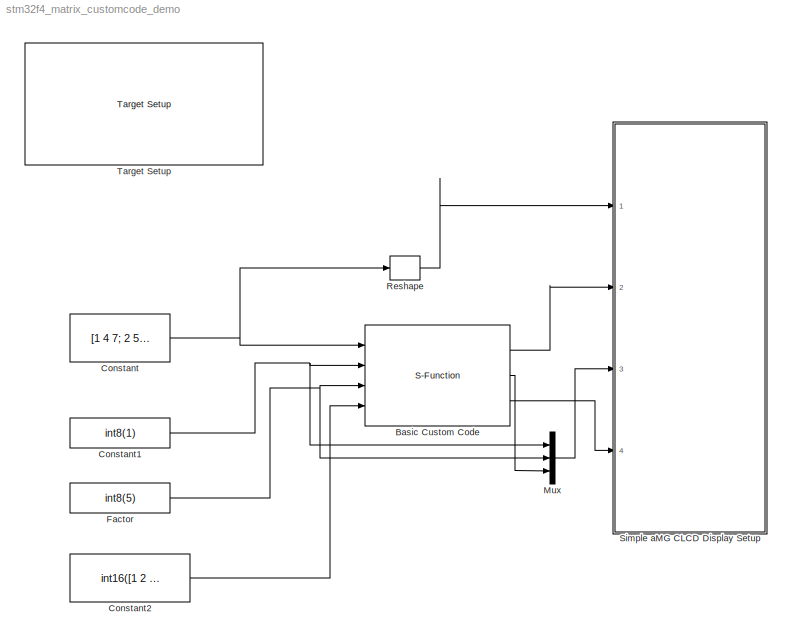
MODEL stm32f4_matrix_customcode_demo
KIND model
CONFIG PreLoadFcn = waijung.modelPreload; % Required for working with Waijung Blockset. Do not remove.
BLOCK [S-Function] Basic Custom Code
  EnableBusSupport = off
  FunctionName = waijung_basic_customcode
  MaskCallbackString = waijung_basic_customcode_callback('inputporttype');|waijung_basic_customcode_callback('cinputportlabel');||||waijung_basic_customcode_callback('outputporttype');|waijung_basic_customcode_callback('coutputportlabel');||||||waijung_basic_customcode_callback('incfiles');||||||waijung_basic_customcode_callback('sampletime');||waijung_basic_customcode_callback('blockid');||||
  MaskDescription = This block implements a basic custom code block.\n\nAllowed input/output datatype:\ndynamic,double,single,int8,uint8,int16,uint16,int32,uint32,boolean. Leave this field empty if no input or output needed.\n\n\"Path for include files\" defines the include path. All *.h files in these path(s) will be used in the build process.\n\n\"Path for source files\" defines path to look for each source file(s)...<+672ch>
  MaskDisplay = text(0.5, 0.5, 'Ts (sec): 0.01','ver','middle','hor','center');port_label('input', 1,'In1');port_label('input', 2,'In2');port_label('input', 3,'In3');port_label('input', 4,'In4');port_label('output', 1,'Rearrange');port_label('output', 2,'Add');port_label('output', 3,'Substract')
  MaskEnableString = on,on,on,on,on,on,on,on,on,on,on,on,on,on,on,on,on,on,on,on,on,on,on,off,off
  MaskHelp = web(fullfile(waijungdocroot,'waijung_basic_customcode.htm'), '-browser')
  MaskIconFrame = on
  MaskIconOpaque = on
  MaskIconRotate = none
  MaskIconUnits = normalized
  MaskInitialization = waijung_basic_customcode_callback('init');
  MaskPortRotate = default
  MaskPromptString = Input port definition (data type) separted by comma e.g. double, single, double, uint8|Custom input port labels (Ex. In1, In2, In3)|Custom input port type string|Input port count|Input port data type ID|Output port definition  (data type) separted by comma e.g. double, single, double, uint8|Custom output port labels (Ex. Out1, Out2, Out3)|Custom output port type string|Output port count|Output por...<+589ch>
  MaskSelfModifiable = on
  MaskStyleString = edit,edit,edit,edit,edit,edit,edit,edit,edit,edit,edit,edit,edit,edit,edit,edit,edit,edit,edit,edit,edit,checkbox,edit,edit,edit
  MaskTabNameString = ,,,,,,,,,,,,,,,,,,,,,,,,
  MaskToolTipString = on,on,on,on,on,on,on,on,on,on,on,on,on,on,on,on,on,on,on,on,on,on,on,on,on
  MaskTunableValueString = off,off,off,off,off,off,off,off,off,off,off,off,off,off,off,off,off,off,off,off,off,off,off,off,off
  MaskType = waijung_basic_customcode
  MaskValueString = double,int8,int8,int16|In1,In2,In3,In4|[\"In1\",\"In2\",\"In3\",\"In4\"]|4|[0  2  2  4]|uint8:9x1,int8,double:9x1|Rearrange,Add,Substract|[\"Rearrange\",\"Add\",\"Substract\"]|3|[3  2  0]|{fullfile(pwd,'matrix_customcode')}|{fullfile(pwd,'matrix_customcode')}|{'stm32f4_matrix_customcode.h'}|{'stm32f4_matrix_customcode.c'}||enable_custommatrix();|output_custommatrix(in1,in2,in3, in4 ,out1,out2,out3...<+171ch>
  MaskVarAliasString = ,,,,,,,,,,,,,,,,,,,,,,,,
  MaskVariables = inputporttype=&1;cinputportlabel=&2;cinputportlabelstr=&3;inputportcount=@4;inputporttypeid=@5;outputporttype=&6;coutputportlabel=&7;coutputportlabelstr=&8;outputportcount=@9;outputporttypeid=@10;incpath=@11;srcpath=@12;incfiles=@13;srcfiles=@14;initialfuncallstr=&15;enablefuncallstr=&16;outputfuncallstr=&17;disablefuncallstr=&18;sampletime=@19;sampletimestr=&20;blockid=&21;enablecustomportlabel=@...<+66ch>
  MaskVisibilityString = on,on,off,off,off,on,on,off,off,off,on,on,on,on,on,on,on,on,on,off,off,off,off,off,off
  Parameters = inputportcount,inputporttypeid,outputportcount,outputporttypeid,sampletime,blockid,cinputportlabelstr,coutputportlabelstr,incfilestrarray,outputporttype,inputporttype,initialfuncallstr,enablefuncallstr,outputfuncallstr,disablefuncallstr,inputportdiminfo,outputportdiminfo
  Ports = [4, 3]
BLOCK [Constant] Constant
  OutDataType = fixdt(1, 16)
  OutScaling = 2^0
  Value = [1 4 7; 2 5 8;3 6 9]
BLOCK [Constant] Constant1
  OutDataType = fixdt(1, 16)
  OutScaling = 2^0
  Value = int8(1)
BLOCK [Constant] Constant2
  OutDataType = fixdt(1, 16)
  OutScaling = 2^0
  Value = int16([1 2 3 4 5 6 7 8 9])
BLOCK [Constant] Factor
  OutDataType = fixdt(1, 16)
  OutScaling = 2^0
  Value = int8(5)
BLOCK [Mux] Mux
  DisplayOption = bar
  Inputs = 3
  Ports = [3, 1]
BLOCK [Reshape] Reshape
  Ports = [1, 1]
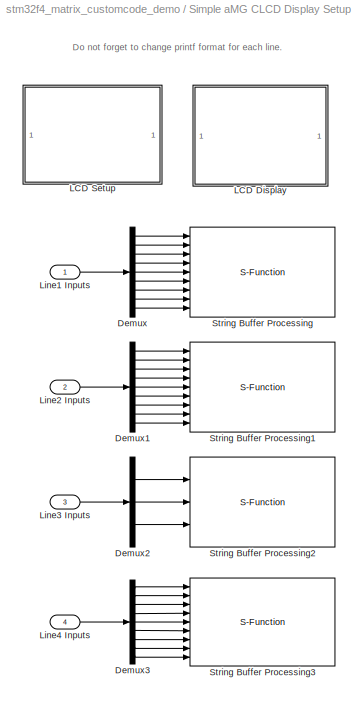
BLOCK [SubSystem] Simple aMG CLCD Display Setup
  CopyFcn = set_param(gcbh, 'LinkStatus', 'none')
  FunctionWithSeparateData = off
  MaskHideContents = off
  MinAlgLoopOccurrences = off
  Opaque = off
  Ports = [4]
  PropExecContextOutsideSubsystem = off
  RTWSystemCode = Auto
  RequestExecContextInheritance = off
BLOCK [Demux] Simple aMG CLCD Display Setup/Demux
  DisplayOption = bar
  Outputs = 9
  Ports = [1, 9]
BLOCK [Demux] Simple aMG CLCD Display Setup/Demux1
  DisplayOption = bar
  Outputs = 9
  Ports = [1, 9]
BLOCK [Demux] Simple aMG CLCD Display Setup/Demux2
  DisplayOption = bar
  Outputs = 3
  Ports = [1, 3]
BLOCK [Demux] Simple aMG CLCD Display Setup/Demux3
  DisplayOption = bar
  Outputs = 9
  Ports = [1, 9]
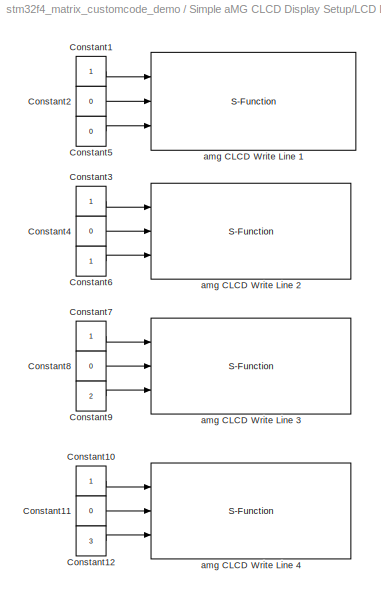
BLOCK [SubSystem] Simple aMG CLCD Display Setup/LCD Display
  FunctionWithSeparateData = off
  MaskHideContents = off
  MinAlgLoopOccurrences = off
  Opaque = off
  Ports = []
  PropExecContextOutsideSubsystem = off
  RTWSystemCode = Auto
  RequestExecContextInheritance = off
BLOCK [Constant] Simple aMG CLCD Display Setup/LCD Display/Constant1
  OutDataType = fixdt(1, 16)
  OutDataTypeMode = uint8
  OutDataTypeStr = uint8
  OutScaling = 2^0
BLOCK [Constant] Simple aMG CLCD Display Setup/LCD Display/Constant10
  OutDataType = fixdt(1, 16)
  OutDataTypeMode = uint8
  OutDataTypeStr = uint8
  OutScaling = 2^0
BLOCK [Constant] Simple aMG CLCD Display Setup/LCD Display/Constant11
  OutDataType = fixdt(1, 16)
  OutDataTypeMode = uint8
  OutDataTypeStr = uint8
  OutScaling = 2^0
  Value = 0
BLOCK [Constant] Simple aMG CLCD Display Setup/LCD Display/Constant12
  OutDataType = fixdt(1, 16)
  OutDataTypeMode = uint8
  OutDataTypeStr = uint8
  OutScaling = 2^0
  Value = 3
BLOCK [Constant] Simple aMG CLCD Display Setup/LCD Display/Constant2
  OutDataType = fixdt(1, 16)
  OutDataTypeMode = uint8
  OutDataTypeStr = uint8
  OutScaling = 2^0
  Value = 0
BLOCK [Constant] Simple aMG CLCD Display Setup/LCD Display/Constant3
  OutDataType = fixdt(1, 16)
  OutDataTypeMode = uint8
  OutDataTypeStr = uint8
  OutScaling = 2^0
BLOCK [Constant] Simple aMG CLCD Display Setup/LCD Display/Constant4
  OutDataType = fixdt(1, 16)
  OutDataTypeMode = uint8
  OutDataTypeStr = uint8
  OutScaling = 2^0
  Value = 0
BLOCK [Constant] Simple aMG CLCD Display Setup/LCD Display/Constant5
  OutDataType = fixdt(1, 16)
  OutDataTypeMode = uint8
  OutDataTypeStr = uint8
  OutScaling = 2^0
  Value = 0
BLOCK [Constant] Simple aMG CLCD Display Setup/LCD Display/Constant6
  OutDataType = fixdt(1, 16)
  OutDataTypeMode = uint8
  OutDataTypeStr = uint8
  OutScaling = 2^0
BLOCK [Constant] Simple aMG CLCD Display Setup/LCD Display/Constant7
  OutDataType = fixdt(1, 16)
  OutDataTypeMode = uint8
  OutDataTypeStr = uint8
  OutScaling = 2^0
BLOCK [Constant] Simple aMG CLCD Display Setup/LCD Display/Constant8
  OutDataType = fixdt(1, 16)
  OutDataTypeMode = uint8
  OutDataTypeStr = uint8
  OutScaling = 2^0
  Value = 0
BLOCK [Constant] Simple aMG CLCD Display Setup/LCD Display/Constant9
  OutDataType = fixdt(1, 16)
  OutDataTypeMode = uint8
  OutDataTypeStr = uint8
  OutScaling = 2^0
  Value = 2
BLOCK [S-Function] Simple aMG CLCD Display Setup/LCD Display/amg CLCD Write Line 1
  EnableBusSupport = off
  FunctionName = amg_clcd
  MaskCallbackString = amg_clcd_callback('configuration');||||||||||||||||amg_clcd_callback('usestringbuffer');||amg_clcd_callback('varname');|||amg_clcd_callback('confstr');|amg_clcd_callback('sampletime');|amg_clcd_callback('sampletimestr');|amg_clcd_callback('blockid');  <repeated x5 — deduplicated; at blocks: amg CLCD Write Line 1, amg CLCD Write Line 2, amg CLCD Write Line 3, amg CLCD Write Line 4, amg CLCD Setup>
  MaskDescription = Note for cmd:\n1 - Clear LCD Line before write.\n0 or otherwise - Write into LCD Line with existing data.\n
  MaskDisplay = text(0.5, 0.5, 'Module: CLCD1 (Write)\\nBuffer: Line1\\nTs (sec): 0.05','ver','middle','hor','center');port_label('input', 1,'cmd');port_label('input', 2,'xpos');port_label('input', 3,'ypos');
  MaskEnableString = on,on,on,off,off,on,on,on,on,on,on,on,on,on,on,on,on,on,off,off,off,on,on,on,on
  MaskHelp = web(fullfile(waijungdocroot,'amg_clcd_write.htm'), '-browser')
  MaskIconFrame = on
  MaskIconOpaque = on
  MaskIconRotate = none
  MaskIconUnits = normalized
  MaskInitialization = amg_clcd_callback('init');
  MaskPortRotate = default
  MaskPromptString = Configuration:|Module:|LCD model:|Interface:|Number of lines:|Number of columns:|GPIO Pull-Up/Down:|GPIO control port:|GPIO control pin, RS:|GPIO control pin, EN:|GPIO control pin, RW:|GPIO data D[7:4] port|GPIO data pin, D4:|GPIO data pin, D5:|GPIO data pin, D6:|GPIO data pin, D7:|Use string buffer|String buffer|Variable name|Input type array|Output type array|Configuration string|Sample time (se...<+47ch>  <repeated x4 — deduplicated; at blocks: amg CLCD Write Line 1, amg CLCD Write Line 2, amg CLCD Write Line 3, amg CLCD Write Line 4>
  MaskSelfModifiable = on
  MaskStyleString = popup(Setup|Transaction),popup(1|2|3|4),popup(amg CLCD Std),popup(4-bits),edit,edit,popup(Push-pull|Open-drain),popup(A|B|C|D|E|F|G|H|I),popup(0|1|2|3|4|5|6|7|8|9|10|11|12|13|14|15),popup(0|1|2|3|4|5|6|7|8|9|10|11|12|13|14|15),popup(0|1|2|3|4|5|6|7|8|9|10|11|12|13|14|15),popup(A|B|C|D|E|F|G|H|I),popup(0|1|2|3|4|5|6|7|8|9|10|11|12|13|14|15),popup(0|1|2|3|4|5|6|7|8|9|10|11|12|13|14|15),popup(0|1|2|3...<+151ch>  <repeated x5 — deduplicated; at blocks: amg CLCD Write Line 1, amg CLCD Write Line 2, amg CLCD Write Line 3, amg CLCD Write Line 4, amg CLCD Setup>
  MaskTabNameString = ,,,,,,,,,,,,,,,,,,,,,,,,
  MaskToolTipString = on,on,on,on,on,on,on,on,on,on,on,on,on,on,on,on,on,on,on,on,on,on,on,on,on
  MaskTunableValueString = off,off,off,off,off,off,off,off,off,off,off,off,off,off,off,off,off,off,off,off,off,off,off,off,off
  MaskType = amg_clcd
  MaskValueString = Transaction|1|amg CLCD Std|4-bits|4|20|Push-pull|E|15|11|13|A|7|5|3|1|on|Line1|SimpleaMGCLCDDisplaySetupLCDSetupVolatileDataStorage_Line1|[3 -1 -1 -1]|[0]|[\"4\",\"4\",\"20\",\"PP\",\"E\",\"15\",\"11\",\"13\",\"\",\"A\",\"\",\"\",\"\",\"\",\"7\",\"5\",\"3\",\"1\",\"1\",\"SimpleaMGCLCDDisplaySetupLCDSetupVolatileDataStorage_Line1\",\"1\",\"0\",\"0\",\"0\",\"1\",\"0\",\"0\",\"0\",\"0\",\"stm32f4\"]|...<+62ch>
  MaskVarAliasString = ,,,,,,,,,,,,,,,,,,,,,,,,
  MaskVariables = configuration=&1;module=&2;model=&3;interface=&4;linecount=@5;columncount=@6;gpiotype=&7;controlport=&8;control_rs=&9;control_en=&10;control_rw=&11;dataport=&12;data0=&13;data1=&14;data2=&15;data3=&16;usestringbuffer=@17;stringbuffer=&18;varname=&19;inputtypearray=@20;outputtypearray=@21;confstr=&22;sampletime=@23;sampletimestr=&24;blockid=&25;  <repeated x4 — deduplicated; at blocks: amg CLCD Write Line 1, amg CLCD Write Line 2, amg CLCD Write Line 3, amg CLCD Write Line 4>
  MaskVisibilityString = off,on,off,off,off,off,off,off,off,off,off,off,off,off,off,off,on,on,off,off,off,off,on,off,off
  Parameters = module,configuration,inputtypearray,outputtypearray,confstr,sampletime,sampletimestr,blockid
  Ports = [3]
BLOCK [S-Function] Simple aMG CLCD Display Setup/LCD Display/amg CLCD Write Line 2
  EnableBusSupport = off
  FunctionName = amg_clcd
  MaskDescription = Note for cmd:\n1 - Clear LCD Line before write.\n0 or otherwise - Write into LCD Line with existing data.\n
  MaskDisplay = text(0.5, 0.5, 'Module: CLCD1 (Write)\\nBuffer: Line2\\nTs (sec): 0.05','ver','middle','hor','center');port_label('input', 1,'cmd');port_label('input', 2,'xpos');port_label('input', 3,'ypos');
  MaskEnableString = on,on,on,off,off,on,on,on,on,on,on,on,on,on,on,on,on,on,off,off,off,on,on,on,on
  MaskHelp = web(fullfile(waijungdocroot,'amg_clcd_write.htm'), '-browser')
  MaskIconFrame = on
  MaskIconOpaque = on
  MaskIconRotate = none
  MaskIconUnits = normalized
  MaskInitialization = amg_clcd_callback('init');
  MaskPortRotate = default
  MaskSelfModifiable = on
  MaskTabNameString = ,,,,,,,,,,,,,,,,,,,,,,,,
  MaskToolTipString = on,on,on,on,on,on,on,on,on,on,on,on,on,on,on,on,on,on,on,on,on,on,on,on,on
  MaskTunableValueString = off,off,off,off,off,off,off,off,off,off,off,off,off,off,off,off,off,off,off,off,off,off,off,off,off
  MaskType = amg_clcd
  MaskValueString = Transaction|1|amg CLCD Std|4-bits|4|20|Push-pull|E|15|11|13|A|7|5|3|1|on|Line2|SimpleaMGCLCDDisplaySetupLCDSetupVolatileDataStorage1_Line2|[3 -1 -1 -1]|[0]|[\"4\",\"4\",\"20\",\"PP\",\"E\",\"15\",\"11\",\"13\",\"\",\"A\",\"\",\"\",\"\",\"\",\"7\",\"5\",\"3\",\"1\",\"1\",\"SimpleaMGCLCDDisplaySetupLCDSetupVolatileDataStorage1_Line2\",\"1\",\"0\",\"0\",\"0\",\"1\",\"0\",\"0\",\"0\",\"0\",\"stm32f4\"...<+64ch>
  MaskVarAliasString = ,,,,,,,,,,,,,,,,,,,,,,,,
  MaskVisibilityString = off,on,off,off,off,off,off,off,off,off,off,off,off,off,off,off,on,on,off,off,off,off,on,off,off
  Parameters = module,configuration,inputtypearray,outputtypearray,confstr,sampletime,sampletimestr,blockid
  Ports = [3]
BLOCK [S-Function] Simple aMG CLCD Display Setup/LCD Display/amg CLCD Write Line 3
  EnableBusSupport = off
  FunctionName = amg_clcd
  MaskDescription = Note for cmd:\n1 - Clear LCD Line before write.\n0 or otherwise - Write into LCD Line with existing data.\n
  MaskDisplay = text(0.5, 0.5, 'Module: CLCD1 (Write)\\nBuffer: Line3\\nTs (sec): 0.05','ver','middle','hor','center');port_label('input', 1,'cmd');port_label('input', 2,'xpos');port_label('input', 3,'ypos');
  MaskEnableString = on,on,on,off,off,on,on,on,on,on,on,on,on,on,on,on,on,on,off,off,off,on,on,on,on
  MaskHelp = web(fullfile(waijungdocroot,'amg_clcd_write.htm'), '-browser')
  MaskIconFrame = on
  MaskIconOpaque = on
  MaskIconRotate = none
  MaskIconUnits = normalized
  MaskInitialization = amg_clcd_callback('init');
  MaskPortRotate = default
  MaskSelfModifiable = on
  MaskTabNameString = ,,,,,,,,,,,,,,,,,,,,,,,,
  MaskToolTipString = on,on,on,on,on,on,on,on,on,on,on,on,on,on,on,on,on,on,on,on,on,on,on,on,on
  MaskTunableValueString = off,off,off,off,off,off,off,off,off,off,off,off,off,off,off,off,off,off,off,off,off,off,off,off,off
  MaskType = amg_clcd
  MaskValueString = Transaction|1|amg CLCD Std|4-bits|4|20|Push-pull|E|15|11|13|A|7|5|3|1|on|Line3|SimpleaMGCLCDDisplaySetupLCDSetupVolatileDataStorage2_Line3|[3 -1 -1 -1]|[0]|[\"4\",\"4\",\"20\",\"PP\",\"E\",\"15\",\"11\",\"13\",\"\",\"A\",\"\",\"\",\"\",\"\",\"7\",\"5\",\"3\",\"1\",\"1\",\"SimpleaMGCLCDDisplaySetupLCDSetupVolatileDataStorage2_Line3\",\"1\",\"0\",\"0\",\"0\",\"1\",\"0\",\"0\",\"0\",\"0\",\"stm32f4\"...<+64ch>
  MaskVarAliasString = ,,,,,,,,,,,,,,,,,,,,,,,,
  MaskVisibilityString = off,on,off,off,off,off,off,off,off,off,off,off,off,off,off,off,on,on,off,off,off,off,on,off,off
  Parameters = module,configuration,inputtypearray,outputtypearray,confstr,sampletime,sampletimestr,blockid
  Ports = [3]
BLOCK [S-Function] Simple aMG CLCD Display Setup/LCD Display/amg CLCD Write Line 4
  EnableBusSupport = off
  FunctionName = amg_clcd
  MaskDescription = Note for cmd:\n1 - Clear LCD Line before write.\n0 or otherwise - Write into LCD Line with existing data.\n
  MaskDisplay = text(0.5, 0.5, 'Module: CLCD1 (Write)\\nBuffer: Line4\\nTs (sec): 0.05','ver','middle','hor','center');port_label('input', 1,'cmd');port_label('input', 2,'xpos');port_label('input', 3,'ypos');
  MaskEnableString = on,on,on,off,off,on,on,on,on,on,on,on,on,on,on,on,on,on,off,off,off,on,on,on,on
  MaskHelp = web(fullfile(waijungdocroot,'amg_clcd_write.htm'), '-browser')
  MaskIconFrame = on
  MaskIconOpaque = on
  MaskIconRotate = none
  MaskIconUnits = normalized
  MaskInitialization = amg_clcd_callback('init');
  MaskPortRotate = default
  MaskSelfModifiable = on
  MaskTabNameString = ,,,,,,,,,,,,,,,,,,,,,,,,
  MaskToolTipString = on,on,on,on,on,on,on,on,on,on,on,on,on,on,on,on,on,on,on,on,on,on,on,on,on
  MaskTunableValueString = off,off,off,off,off,off,off,off,off,off,off,off,off,off,off,off,off,off,off,off,off,off,off,off,off
  MaskType = amg_clcd
  MaskValueString = Transaction|1|amg CLCD Std|4-bits|4|20|Push-pull|E|15|11|13|A|7|5|3|1|on|Line4|SimpleaMGCLCDDisplaySetupLCDSetupVolatileDataStorage3_Line4|[3 -1 -1 -1]|[0]|[\"4\",\"4\",\"20\",\"PP\",\"E\",\"15\",\"11\",\"13\",\"\",\"A\",\"\",\"\",\"\",\"\",\"7\",\"5\",\"3\",\"1\",\"1\",\"SimpleaMGCLCDDisplaySetupLCDSetupVolatileDataStorage3_Line4\",\"1\",\"0\",\"0\",\"0\",\"1\",\"0\",\"0\",\"0\",\"0\",\"stm32f4\"...<+64ch>
  MaskVarAliasString = ,,,,,,,,,,,,,,,,,,,,,,,,
  MaskVisibilityString = off,on,off,off,off,off,off,off,off,off,off,off,off,off,off,off,on,on,off,off,off,off,on,off,off
  Parameters = module,configuration,inputtypearray,outputtypearray,confstr,sampletime,sampletimestr,blockid
  Ports = [3]
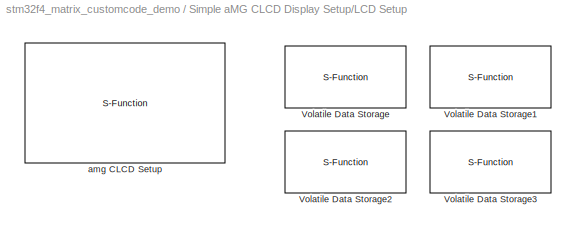
BLOCK [SubSystem] Simple aMG CLCD Display Setup/LCD Setup
  FunctionWithSeparateData = off
  MaskHideContents = off
  MinAlgLoopOccurrences = off
  Opaque = off
  Ports = []
  PropExecContextOutsideSubsystem = off
  RTWSystemCode = Auto
  RequestExecContextInheritance = off
BLOCK [S-Function] Simple aMG CLCD Display Setup/LCD Setup/Volatile Data Storage
  EnableBusSupport = off
  FunctionName = waijung_vdata_storage
  MaskCallbackString = waijung_vdata_storage_callback('storagetype');|waijung_vdata_storage_callback('storagename');|waijung_vdata_storage_callback('initval');|waijung_vdata_storage_callback('varname');||waijung_vdata_storage_callback('initvalstring');|waijung_vdata_storage_callback('webintegration');|waijung_vdata_storage_callback('weboutputformat');|||waijung_vdata_storage_callback('sampletime');|waijung_vdata_storage...<+71ch>  <repeated x4 — deduplicated; at blocks: Volatile Data Storage, Volatile Data Storage1, Volatile Data Storage2, Volatile Data Storage3>
  MaskDescription = This block implements a volatile Data Storage.\n\nWeb CGI varset/varget integratiopn:\nEnable - In webserver application, allow remote access via http.\nDisable - Variable is use in local only.  <repeated x4 — deduplicated; at blocks: Volatile Data Storage, Volatile Data Storage1, Volatile Data Storage2, Volatile Data Storage3>
  MaskDisplay = text(0.5, 0.5, 'Name: Line1\\nType: string','ver','middle','hor','center')
  MaskEnableString = on,on,on,off,on,on,on,on,off,on,on,off,off,on
  MaskHelp = web(fullfile(waijungdocroot,'Volatile_Data_Storage.htm'))
  MaskIconFrame = on
  MaskIconOpaque = on
  MaskIconRotate = none
  MaskIconUnits = normalized
  MaskInitialization = waijung_vdata_storage_callback('init');
  MaskPortRotate = default
  MaskPromptString = Storage Type|Storage Name (must be a valid variable name)|Initial value (Apply at Power on Reset only)|Variable name|Size (bytes)|Initial value (Apply at Power on Reset only)|Web CGI varget/varset integration|Web CGI varget output format|Web CGI varset callback|Last selected Storage Type|Sample time (sec)|Compiled sample time (sec) in string|BlockID|Type string  <repeated x4 — deduplicated; at blocks: Volatile Data Storage, Volatile Data Storage1, Volatile Data Storage2, Volatile Data Storage3>
  MaskSelfModifiable = on
  MaskStyleString = popup(double|single|uint32|int32|uint16|int16|uint8|int8|string),edit,edit,edit,edit,edit,popup(Disable|ReadOnly|Write/ Read|ReadOnly with KeyValuePair|Write/ Read with KeyValuePair),edit,edit,popup(double|single|uint32|int32|uint16|int16|uint8|int8|string),edit,edit,edit,edit  <repeated x4 — deduplicated; at blocks: Volatile Data Storage, Volatile Data Storage1, Volatile Data Storage2, Volatile Data Storage3>
  MaskTabNameString = ,,,,,,,,,,,,,
  MaskToolTipString = on,on,on,on,on,on,on,on,on,on,on,on,on,on
  MaskTunableValueString = off,off,off,off,off,off,off,off,off,off,off,off,off,off
  MaskType = waijung_vdata_storage
  MaskValueString = string|Line1|0|SimpleaMGCLCDDisplaySetupLCDSetupVolatileDataStorage_Line1|64|''|Disable|'%s'|(void*)0|string|-1|0.01|SimpleaMGCLCDDisplaySetupLCDSetupVolatileDataStorage|char
  MaskVarAliasString = ,,,,,,,,,,,,,
  MaskVariables = storagetype=&1;storagename=&2;initval=@3;varname=&4;buffersize=@5;initvalstring=@6;webintegration=&7;weboutputformat=&8;webcgicallback=&9;laststoragetype=&10;sampletime=@11;sampletimestr=&12;blockid=&13;storagetypestr=&14;  <repeated x4 — deduplicated; at blocks: Volatile Data Storage, Volatile Data Storage1, Volatile Data Storage2, Volatile Data Storage3>
  MaskVisibilityString = on,on,off,off,on,on,on,off,off,off,on,off,off,off
  Parameters = storagetype,storagename,initval,varname,buffersize,initvalstring,sampletime,sampletimestr,blockid,storagetypestr
  Ports = []
BLOCK [S-Function] Simple aMG CLCD Display Setup/LCD Setup/Volatile Data Storage1
  EnableBusSupport = off
  FunctionName = waijung_vdata_storage
  MaskDisplay = text(0.5, 0.5, 'Name: Line2\\nType: string','ver','middle','hor','center')
  MaskEnableString = on,on,on,off,on,on,on,on,off,on,on,off,off,on
  MaskHelp = web(fullfile(waijungdocroot,'Volatile_Data_Storage.htm'))
  MaskIconFrame = on
  MaskIconOpaque = on
  MaskIconRotate = none
  MaskIconUnits = normalized
  MaskInitialization = waijung_vdata_storage_callback('init');
  MaskPortRotate = default
  MaskSelfModifiable = on
  MaskTabNameString = ,,,,,,,,,,,,,
  MaskToolTipString = on,on,on,on,on,on,on,on,on,on,on,on,on,on
  MaskTunableValueString = off,off,off,off,off,off,off,off,off,off,off,off,off,off
  MaskType = waijung_vdata_storage
  MaskValueString = string|Line2|0|SimpleaMGCLCDDisplaySetupLCDSetupVolatileDataStorage1_Line2|64|''|Disable|'%s'|(void*)0|string|-1|0.01|SimpleaMGCLCDDisplaySetupLCDSetupVolatileDataStorage1|char
  MaskVarAliasString = ,,,,,,,,,,,,,
  MaskVisibilityString = on,on,off,off,on,on,on,off,off,off,on,off,off,off
  Parameters = storagetype,storagename,initval,varname,buffersize,initvalstring,sampletime,sampletimestr,blockid,storagetypestr
  Ports = []
BLOCK [S-Function] Simple aMG CLCD Display Setup/LCD Setup/Volatile Data Storage2
  EnableBusSupport = off
  FunctionName = waijung_vdata_storage
  MaskDisplay = text(0.5, 0.5, 'Name: Line3\\nType: string','ver','middle','hor','center')
  MaskEnableString = on,on,on,off,on,on,on,on,off,on,on,off,off,on
  MaskHelp = web(fullfile(waijungdocroot,'Volatile_Data_Storage.htm'))
  MaskIconFrame = on
  MaskIconOpaque = on
  MaskIconRotate = none
  MaskIconUnits = normalized
  MaskInitialization = waijung_vdata_storage_callback('init');
  MaskPortRotate = default
  MaskSelfModifiable = on
  MaskTabNameString = ,,,,,,,,,,,,,
  MaskToolTipString = on,on,on,on,on,on,on,on,on,on,on,on,on,on
  MaskTunableValueString = off,off,off,off,off,off,off,off,off,off,off,off,off,off
  MaskType = waijung_vdata_storage
  MaskValueString = string|Line3|0|SimpleaMGCLCDDisplaySetupLCDSetupVolatileDataStorage2_Line3|64|''|Disable|'%s'|(void*)0|string|-1|0.01|SimpleaMGCLCDDisplaySetupLCDSetupVolatileDataStorage2|char
  MaskVarAliasString = ,,,,,,,,,,,,,
  MaskVisibilityString = on,on,off,off,on,on,on,off,off,off,on,off,off,off
  Parameters = storagetype,storagename,initval,varname,buffersize,initvalstring,sampletime,sampletimestr,blockid,storagetypestr
  Ports = []
BLOCK [S-Function] Simple aMG CLCD Display Setup/LCD Setup/Volatile Data Storage3
  EnableBusSupport = off
  FunctionName = waijung_vdata_storage
  MaskDisplay = text(0.5, 0.5, 'Name: Line4\\nType: string','ver','middle','hor','center')
  MaskEnableString = on,on,on,off,on,on,on,on,off,on,on,off,off,on
  MaskHelp = web(fullfile(waijungdocroot,'Volatile_Data_Storage.htm'))
  MaskIconFrame = on
  MaskIconOpaque = on
  MaskIconRotate = none
  MaskIconUnits = normalized
  MaskInitialization = waijung_vdata_storage_callback('init');
  MaskPortRotate = default
  MaskSelfModifiable = on
  MaskTabNameString = ,,,,,,,,,,,,,
  MaskToolTipString = on,on,on,on,on,on,on,on,on,on,on,on,on,on
  MaskTunableValueString = off,off,off,off,off,off,off,off,off,off,off,off,off,off
  MaskType = waijung_vdata_storage
  MaskValueString = string|Line4|0|SimpleaMGCLCDDisplaySetupLCDSetupVolatileDataStorage3_Line4|64|''|Disable|'%s'|(void*)0|string|-1|0.01|SimpleaMGCLCDDisplaySetupLCDSetupVolatileDataStorage3|char
  MaskVarAliasString = ,,,,,,,,,,,,,
  MaskVisibilityString = on,on,off,off,on,on,on,off,off,off,on,off,off,off
  Parameters = storagetype,storagename,initval,varname,buffersize,initvalstring,sampletime,sampletimestr,blockid,storagetypestr
  Ports = []
BLOCK [S-Function] Simple aMG CLCD Display Setup/LCD Setup/amg CLCD Setup
  EnableBusSupport = off
  FunctionName = amg_clcd
  MaskDisplay = text(0.5, 0.5, 'Module: CLCD1 (Setup)\\nInterface: 4-bits\\nCntrl: E7/E8/E9\\nD[7:4]: E12/E13/E14/E15\\nTs (sec): 0.01','ver','middle','hor','center');
  MaskEnableString = on,on,on,off,off,on,on,on,on,on,on,on,on,on,on,on,on,on,off,off,off,on,on,on,on
  MaskHelp = web(fullfile(waijungdocroot,'amg_clcd_setup.htm'), '-browser')
  MaskIconFrame = on
  MaskIconOpaque = on
  MaskIconRotate = none
  MaskIconUnits = normalized
  MaskInitialization = amg_clcd_callback('init');
  MaskPortRotate = default
  MaskPromptString = Configuration:|Module:|LCD model:|Interface:|Number of lines:|Number of columns:|GPIO Pull-Up/Down:|GPIO control port:|GPIO control pin, RS:|GPIO control pin, RW:|GPIO control pin, EN:|GPIO data D[7:4] port|GPIO data pin, D4:|GPIO data pin, D5:|GPIO data pin, D6:|GPIO data pin, D7:|Use string buffer|String buffer|Variable name|Input type array|Output type array|Configuration string|Sample time (se...<+47ch>
  MaskSelfModifiable = on
  MaskTabNameString = ,,,,,,,,,,,,,,,,,,,,,,,,
  MaskToolTipString = on,on,on,on,on,on,on,on,on,on,on,on,on,on,on,on,on,on,on,on,on,on,on,on,on
  MaskTunableValueString = off,off,off,off,off,off,off,off,off,off,off,off,off,off,off,off,off,off,off,off,off,off,off,off,off
  MaskType = amg_clcd
  MaskValueString = Setup|1|amg CLCD Std|4-bits|4|16|Push-pull|E|7|8|9|E|12|13|14|15|off|Line2|clcd_demo_4linesLCDSetupVolatileDataStorage3_Line2|[0]|[0]|[\"4\",\"4\",\"16\",\"PP\",\"E\",\"7\",\"9\",\"8\",\"\",\"E\",\"\",\"\",\"\",\"\",\"12\",\"13\",\"14\",\"15\",\"0\",\"\",\"0\",\"0\",\"0\",\"0\",\"1\",\"0\",\"0\",\"0\",\"0\",\"stm32f4\"]|-1|0.01|SimpleaMGCLCDDisplaySetupLCDSetupamgCLCDSetup
  MaskVarAliasString = ,,,,,,,,,,,,,,,,,,,,,,,,
  MaskVariables = configuration=&1;module=&2;model=&3;interface=&4;linecount=@5;columncount=@6;gpiotype=&7;controlport=&8;control_rs=&9;control_rw=&10;control_en=&11;dataport=&12;data0=&13;data1=&14;data2=&15;data3=&16;usestringbuffer=@17;stringbuffer=&18;varname=&19;inputtypearray=@20;outputtypearray=@21;confstr=&22;sampletime=@23;sampletimestr=&24;blockid=&25;
  MaskVisibilityString = off,on,off,on,off,on,on,on,on,on,on,on,on,on,on,on,off,off,off,off,off,off,off,off,off
  Parameters = module,configuration,inputtypearray,outputtypearray,confstr,sampletime,sampletimestr,blockid
  Ports = []
BLOCK [Inport] Simple aMG CLCD Display Setup/Line1 Inputs
  IconDisplay = Port number
  OutDataType = fixdt(1, 16)
  OutScaling = 2^0
BLOCK [Inport] Simple aMG CLCD Display Setup/Line2 Inputs
  IconDisplay = Port number
  OutDataType = fixdt(1, 16)
  OutScaling = 2^0
  Port = 2
BLOCK [Inport] Simple aMG CLCD Display Setup/Line3 Inputs
  IconDisplay = Port number
  OutDataType = fixdt(1, 16)
  OutScaling = 2^0
  Port = 3
BLOCK [Inport] Simple aMG CLCD Display Setup/Line4 Inputs
  IconDisplay = Port number
  OutDataType = fixdt(1, 16)
  OutScaling = 2^0
  Port = 4
BLOCK [S-Function] Simple aMG CLCD Display Setup/String Buffer Processing
  EnableBusSupport = off
  FunctionName = waijung_stringbuffer_processing
  MaskCallbackString = waijung_stringbuffer_processing_callback('configuration');||waijung_stringbuffer_processing_callback('sformat');|waijung_stringbuffer_processing_callback('enableoutput');||||||waijung_stringbuffer_processing_callback('sampletime');|waijung_stringbuffer_processing_callback('sampletimestr');|waijung_stringbuffer_processing_callback('blockid');  <repeated x4 — deduplicated; at blocks: String Buffer Processing, String Buffer Processing1, String Buffer Processing2, String Buffer Processing3>
  MaskDescription = This block implements string processing, sprintf/ sscanf command.\nSupported format:\n%u, %i, %o, %x: uint32\n%d: int32\n%e, %g, %f: single\n%c: int8\n\nStatus:\n 0: Failed.\n Non-zero: Success.  <repeated x4 — deduplicated; at blocks: String Buffer Processing, String Buffer Processing1, String Buffer Processing2, String Buffer Processing3>
  MaskDisplay = text(0.5, 0.5, '[ sprintf ]\\nBuffer: Line1\\nTs (sec): 0.01','ver','middle','hor','center');port_label('input', 1,'%g');port_label('input', 2,'%g');port_label('input', 3,'%g');port_label('input', 4,'%g');port_label('input', 5,'%g');port_label('input', 6,'%g');port_label('input', 7,'%g');port_label('input', 8,'%g');port_label('input', 9,'%g');
  MaskEnableString = on,on,on,on,off,on,on,on,on,on,off,off
  MaskHelp = web(fullfile(waijungdocroot,'String_Buffer_Processing.htm'))
  MaskIconFrame = on
  MaskIconOpaque = on
  MaskIconRotate = none
  MaskIconUnits = normalized
  MaskInitialization = waijung_stringbuffer_processing_callback('init');
  MaskPortRotate = default
  MaskPromptString = Function|String buffer|Printf format|Enable output status|Variable name|Input type array|Output type array|Port type list|Port type count|Sample time (sec)|Compiled sample time (sec) in string|BlockID  <repeated x4 — deduplicated; at blocks: String Buffer Processing, String Buffer Processing1, String Buffer Processing2, String Buffer Processing3>
  MaskSelfModifiable = on
  MaskStyleString = popup(sprintf|sscanf),popup(Line1|Line2|Line3|Line4|<output>),edit,checkbox,edit,edit,edit,edit,edit,edit,edit,edit
  MaskTabNameString = ,,,,,,,,,,,
  MaskToolTipString = on,on,on,on,on,on,on,on,on,on,on,on
  MaskTunableValueString = on,off,off,off,off,off,off,off,off,off,off,off
  MaskType = waijung_stringbuffer_processing
  MaskValueString = sprintf|Line1|'%g%g%g%g%g%g%g%g%g'|off|SimpleaMGCLCDDisplaySetupLCDSetupVolatileDataStorage_Line1|[9 -1 -1 -1 -1 -1 -1 -1 -1 -1]|[0]|[\"float\",\"float\",\"float\",\"float\",\"float\",\"float\",\"float\",\"float\",\"float\"]|9|-1|0.01|SimpleaMGCLCDDisplaySetupStringBufferProcessing
  MaskVarAliasString = ,,,,,,,,,,,
  MaskVariables = configuration=&1;storagename=&2;sformat=@3;enableoutput=&4;varname=&5;inputtypearray=@6;outputtypearray=@7;porttypes=&8;portcount=@9;sampletime=@10;sampletimestr=&11;blockid=&12;
  MaskVisibilityString = on,on,on,on,off,off,off,off,off,on,off,off
  Parameters = configuration,varname,sformat,porttypes,portcount,inputtypearray,outputtypearray,sampletime,sampletimestr,blockid
  Ports = [9]
BLOCK [S-Function] Simple aMG CLCD Display Setup/String Buffer Processing1
  EnableBusSupport = off
  FunctionName = waijung_stringbuffer_processing
  MaskDisplay = text(0.5, 0.5, '[ sprintf ]\\nBuffer: Line2\\nTs (sec): 0.01','ver','middle','hor','center');port_label('input', 1,'%g');port_label('input', 2,'%g');port_label('input', 3,'%g');port_label('input', 4,'%g');port_label('input', 5,'%g');port_label('input', 6,'%g');port_label('input', 7,'%g');port_label('input', 8,'%g');port_label('input', 9,'%g');
  MaskEnableString = on,on,on,on,off,on,on,on,on,on,off,off
  MaskHelp = web(fullfile(waijungdocroot,'String_Buffer_Processing.htm'))
  MaskIconFrame = on
  MaskIconOpaque = on
  MaskIconRotate = none
  MaskIconUnits = normalized
  MaskInitialization = waijung_stringbuffer_processing_callback('init');
  MaskPortRotate = default
  MaskSelfModifiable = on
  MaskStyleString = popup(sprintf|sscanf),popup(Line1|Line2|Line3|Line4|<output>),edit,checkbox,edit,edit,edit,edit,edit,edit,edit,edit
  MaskTabNameString = ,,,,,,,,,,,
  MaskToolTipString = on,on,on,on,on,on,on,on,on,on,on,on
  MaskTunableValueString = on,off,off,off,off,off,off,off,off,off,off,off
  MaskType = waijung_stringbuffer_processing
  MaskValueString = sprintf|Line2|'%g%g%g%g%g%g%g%g%g'|off|SimpleaMGCLCDDisplaySetupLCDSetupVolatileDataStorage1_Line2|[9 -1 -1 -1 -1 -1 -1 -1 -1 -1]|[0]|[\"float\",\"float\",\"float\",\"float\",\"float\",\"float\",\"float\",\"float\",\"float\"]|9|-1|0.01|SimpleaMGCLCDDisplaySetupStringBufferProcessing1
  MaskVarAliasString = ,,,,,,,,,,,
  MaskVariables = configuration=&1;storagename=&2;sformat=@3;enableoutput=&4;varname=&5;inputtypearray=@6;outputtypearray=@7;porttypes=&8;portcount=@9;sampletime=@10;sampletimestr=&11;blockid=&12;
  MaskVisibilityString = on,on,on,on,off,off,off,off,off,on,off,off
  Parameters = configuration,varname,sformat,porttypes,portcount,inputtypearray,outputtypearray,sampletime,sampletimestr,blockid
  Ports = [9]
BLOCK [S-Function] Simple aMG CLCD Display Setup/String Buffer Processing2
  EnableBusSupport = off
  FunctionName = waijung_stringbuffer_processing
  MaskDisplay = text(0.5, 0.5, '[ sprintf ]\\nBuffer: Line3\\nTs (sec): 0.01','ver','middle','hor','center');port_label('input', 1,'%g');port_label('input', 2,'%g');port_label('input', 3,'%g');
  MaskEnableString = on,on,on,on,off,on,on,on,on,on,off,off
  MaskHelp = web(fullfile(waijungdocroot,'String_Buffer_Processing.htm'))
  MaskIconFrame = on
  MaskIconOpaque = on
  MaskIconRotate = none
  MaskIconUnits = normalized
  MaskInitialization = waijung_stringbuffer_processing_callback('init');
  MaskPortRotate = default
  MaskSelfModifiable = on
  MaskStyleString = popup(sprintf|sscanf),popup(Line1|Line2|Line3|Line4|<output>),edit,checkbox,edit,edit,edit,edit,edit,edit,edit,edit
  MaskTabNameString = ,,,,,,,,,,,
  MaskToolTipString = on,on,on,on,on,on,on,on,on,on,on,on
  MaskTunableValueString = on,off,off,off,off,off,off,off,off,off,off,off
  MaskType = waijung_stringbuffer_processing
  MaskValueString = sprintf|Line3|'%gx%g=%g'|off|SimpleaMGCLCDDisplaySetupLCDSetupVolatileDataStorage2_Line3|[3 -1 -1 -1]|[0]|[\"float\",\"float\",\"float\"]|3|-1|0.01|SimpleaMGCLCDDisplaySetupStringBufferProcessing2
  MaskVarAliasString = ,,,,,,,,,,,
  MaskVariables = configuration=&1;storagename=&2;sformat=@3;enableoutput=&4;varname=&5;inputtypearray=@6;outputtypearray=@7;porttypes=&8;portcount=@9;sampletime=@10;sampletimestr=&11;blockid=&12;
  MaskVisibilityString = on,on,on,on,off,off,off,off,off,on,off,off
  Parameters = configuration,varname,sformat,porttypes,portcount,inputtypearray,outputtypearray,sampletime,sampletimestr,blockid
  Ports = [3]
BLOCK [S-Function] Simple aMG CLCD Display Setup/String Buffer Processing3
  EnableBusSupport = off
  FunctionName = waijung_stringbuffer_processing
  MaskDisplay = text(0.5, 0.5, '[ sprintf ]\\nBuffer: Line4\\nTs (sec): 0.01','ver','middle','hor','center');port_label('input', 1,'%g');port_label('input', 2,'%g');port_label('input', 3,'%g');port_label('input', 4,'%g');port_label('input', 5,'%g');port_label('input', 6,'%g');port_label('input', 7,'%g');port_label('input', 8,'%g');port_label('input', 9,'%g');
  MaskEnableString = on,on,on,on,off,on,on,on,on,on,off,off
  MaskHelp = web(fullfile(waijungdocroot,'String_Buffer_Processing.htm'))
  MaskIconFrame = on
  MaskIconOpaque = on
  MaskIconRotate = none
  MaskIconUnits = normalized
  MaskInitialization = waijung_stringbuffer_processing_callback('init');
  MaskPortRotate = default
  MaskSelfModifiable = on
  MaskStyleString = popup(sprintf|sscanf),popup(Line1|Line2|Line3|Line4|<output>),edit,checkbox,edit,edit,edit,edit,edit,edit,edit,edit
  MaskTabNameString = ,,,,,,,,,,,
  MaskToolTipString = on,on,on,on,on,on,on,on,on,on,on,on
  MaskTunableValueString = on,off,off,off,off,off,off,off,off,off,off,off
  MaskType = waijung_stringbuffer_processing
  MaskValueString = sprintf|Line4|'%g%g%g%g%g%g%g%g%g'|off|SimpleaMGCLCDDisplaySetupLCDSetupVolatileDataStorage3_Line4|[9 -1 -1 -1 -1 -1 -1 -1 -1 -1]|[0]|[\"float\",\"float\",\"float\",\"float\",\"float\",\"float\",\"float\",\"float\",\"float\"]|9|-1|0.01|SimpleaMGCLCDDisplaySetupStringBufferProcessing3
  MaskVarAliasString = ,,,,,,,,,,,
  MaskVariables = configuration=&1;storagename=&2;sformat=@3;enableoutput=&4;varname=&5;inputtypearray=@6;outputtypearray=@7;porttypes=&8;portcount=@9;sampletime=@10;sampletimestr=&11;blockid=&12;
  MaskVisibilityString = on,on,on,on,off,off,off,off,off,on,off,off
  Parameters = configuration,varname,sformat,porttypes,portcount,inputtypearray,outputtypearray,sampletime,sampletimestr,blockid
  Ports = [9]
BLOCK [Reference] Target Setup  REF=stm32f4_device_config_lib/Target Setup
  Ports = []
  Priority = 100
  SourceBlock = stm32f4_device_config_lib/Target Setup
  SourceType = stm32f4_target_setup
  assemblercontrolstr = $(patsubst %, -I%, .) -mcpu=cortex-m4 -mthumb -mthumb-interwork -mfloat-abi=hard -mfpu=fpv4-sp-d16 -ffast-math -Wall -Wextra -Ofast -Wa,-amhls=$(<:.s=.lst) -D__STACK_SIZE=$(STACK_SIZE) -D__HEAP_SIZE=$(HEAP_SIZE)
  blockid = TargetSetup
  clockconfig = HSEOSC-8MHz
  compiler = GNU ARM
  compilercontrolstr = $(patsubst %, -I%, .) -mcpu=cortex-m4 -mthumb -mthumb-interwork -mfloat-abi=hard -mfpu=fpv4-sp-d16 -ffast-math -Wall -Wextra -Ofast
  editctrlstr = on
  enableautocompiledownload = on
  execprofile = None
  flashlength = 1024k
  flashorigin = 0x8000000
  fullchiperase = off
  hclk = 168000000
  heapsize = 0x200
  hseval = 8000000
  lastprofileruart = 1
  linkercontrolstr = -T$(LD_SCRIPT) -g -Wl,-Map=$(MAP),--cref,--no-warn-mismatch -mcpu=cortex-m4 -mthumb -mthumb-interwork -mfloat-abi=hard -mfpu=fpv4-sp-d16 -specs=nosys.specs
  manualsetsampletime = off
  mcu = STM32F417IG (LQFP176)
  mcustr = STM32F417IG
  previous_compiler = GNU ARM
  profilerbaud = 115200
  profilerinitstr = 0.01,168000000,1680000,115200,0
  profilertxpin = D8
  profileruart = 1
  programmerinterface = ST-Link
  ramlength = 128k
  ramorigin = 0x20000000
  runafterdownload = on
  sampletime = 0.01
  showmemoryconfiguration = off
  stacksize = 0x400
  system_stm32f4xx_c_path = <path>
  systickreloadvalue = 1680000
  useextram = off
ANNOTATION Simple aMG CLCD Display Setup: Do not forget to change printf format for each line.
LINE Basic Custom Code:1 -> Simple aMG CLCD Display Setup:2
LINE Basic Custom Code:2 -> Mux:3
LINE Basic Custom Code:3 -> Simple aMG CLCD Display Setup:4
NET Constant1:1 -> Basic Custom Code:2, Mux:1
LINE Constant2:1 -> Basic Custom Code:4
NET Constant:1 -> Basic Custom Code:1, Reshape:1
NET Factor:1 -> Basic Custom Code:3, Mux:2
LINE Mux:1 -> Simple aMG CLCD Display Setup:3
LINE Reshape:1 -> Simple aMG CLCD Display Setup:1
LINE Simple aMG CLCD Display Setup/Demux1:1 -> Simple aMG CLCD Display Setup/String Buffer Processing1:1
LINE Simple aMG CLCD Display Setup/Demux1:2 -> Simple aMG CLCD Display Setup/String Buffer Processing1:2
LINE Simple aMG CLCD Display Setup/Demux1:3 -> Simple aMG CLCD Display Setup/String Buffer Processing1:3
LINE Simple aMG CLCD Display Setup/Demux1:4 -> Simple aMG CLCD Display Setup/String Buffer Processing1:4
LINE Simple aMG CLCD Display Setup/Demux1:5 -> Simple aMG CLCD Display Setup/String Buffer Processing1:5
LINE Simple aMG CLCD Display Setup/Demux1:6 -> Simple aMG CLCD Display Setup/String Buffer Processing1:6
LINE Simple aMG CLCD Display Setup/Demux1:7 -> Simple aMG CLCD Display Setup/String Buffer Processing1:7
LINE Simple aMG CLCD Display Setup/Demux1:8 -> Simple aMG CLCD Display Setup/String Buffer Processing1:8
LINE Simple aMG CLCD Display Setup/Demux1:9 -> Simple aMG CLCD Display Setup/String Buffer Processing1:9
LINE Simple aMG CLCD Display Setup/Demux2:1 -> Simple aMG CLCD Display Setup/String Buffer Processing2:1
LINE Simple aMG CLCD Display Setup/Demux2:2 -> Simple aMG CLCD Display Setup/String Buffer Processing2:2
LINE Simple aMG CLCD Display Setup/Demux2:3 -> Simple aMG CLCD Display Setup/String Buffer Processing2:3
LINE Simple aMG CLCD Display Setup/Demux3:1 -> Simple aMG CLCD Display Setup/String Buffer Processing3:1
LINE Simple aMG CLCD Display Setup/Demux3:2 -> Simple aMG CLCD Display Setup/String Buffer Processing3:2
LINE Simple aMG CLCD Display Setup/Demux3:3 -> Simple aMG CLCD Display Setup/String Buffer Processing3:3
LINE Simple aMG CLCD Display Setup/Demux3:4 -> Simple aMG CLCD Display Setup/String Buffer Processing3:4
LINE Simple aMG CLCD Display Setup/Demux3:5 -> Simple aMG CLCD Display Setup/String Buffer Processing3:5
LINE Simple aMG CLCD Display Setup/Demux3:6 -> Simple aMG CLCD Display Setup/String Buffer Processing3:6
LINE Simple aMG CLCD Display Setup/Demux3:7 -> Simple aMG CLCD Display Setup/String Buffer Processing3:7
LINE Simple aMG CLCD Display Setup/Demux3:8 -> Simple aMG CLCD Display Setup/String Buffer Processing3:8
LINE Simple aMG CLCD Display Setup/Demux3:9 -> Simple aMG CLCD Display Setup/String Buffer Processing3:9
LINE Simple aMG CLCD Display Setup/Demux:1 -> Simple aMG CLCD Display Setup/String Buffer Processing:1
LINE Simple aMG CLCD Display Setup/Demux:2 -> Simple aMG CLCD Display Setup/String Buffer Processing:2
LINE Simple aMG CLCD Display Setup/Demux:3 -> Simple aMG CLCD Display Setup/String Buffer Processing:3
LINE Simple aMG CLCD Display Setup/Demux:4 -> Simple aMG CLCD Display Setup/String Buffer Processing:4
LINE Simple aMG CLCD Display Setup/Demux:5 -> Simple aMG CLCD Display Setup/String Buffer Processing:5
LINE Simple aMG CLCD Display Setup/Demux:6 -> Simple aMG CLCD Display Setup/String Buffer Processing:6
LINE Simple aMG CLCD Display Setup/Demux:7 -> Simple aMG CLCD Display Setup/String Buffer Processing:7
LINE Simple aMG CLCD Display Setup/Demux:8 -> Simple aMG CLCD Display Setup/String Buffer Processing:8
LINE Simple aMG CLCD Display Setup/Demux:9 -> Simple aMG CLCD Display Setup/String Buffer Processing:9
LINE Simple aMG CLCD Display Setup/LCD Display/Constant10:1 -> Simple aMG CLCD Display Setup/LCD Display/amg CLCD Write Line 4:1
LINE Simple aMG CLCD Display Setup/LCD Display/Constant11:1 -> Simple aMG CLCD Display Setup/LCD Display/amg CLCD Write Line 4:2
LINE Simple aMG CLCD Display Setup/LCD Display/Constant12:1 -> Simple aMG CLCD Display Setup/LCD Display/amg CLCD Write Line 4:3
LINE Simple aMG CLCD Display Setup/LCD Display/Constant1:1 -> Simple aMG CLCD Display Setup/LCD Display/amg CLCD Write Line 1:1
LINE Simple aMG CLCD Display Setup/LCD Display/Constant2:1 -> Simple aMG CLCD Display Setup/LCD Display/amg CLCD Write Line 1:2
LINE Simple aMG CLCD Display Setup/LCD Display/Constant3:1 -> Simple aMG CLCD Display Setup/LCD Display/amg CLCD Write Line 2:1
LINE Simple aMG CLCD Display Setup/LCD Display/Constant4:1 -> Simple aMG CLCD Display Setup/LCD Display/amg CLCD Write Line 2:2
LINE Simple aMG CLCD Display Setup/LCD Display/Constant5:1 -> Simple aMG CLCD Display Setup/LCD Display/amg CLCD Write Line 1:3
LINE Simple aMG CLCD Display Setup/LCD Display/Constant6:1 -> Simple aMG CLCD Display Setup/LCD Display/amg CLCD Write Line 2:3
LINE Simple aMG CLCD Display Setup/LCD Display/Constant7:1 -> Simple aMG CLCD Display Setup/LCD Display/amg CLCD Write Line 3:1
LINE Simple aMG CLCD Display Setup/LCD Display/Constant8:1 -> Simple aMG CLCD Display Setup/LCD Display/amg CLCD Write Line 3:2
LINE Simple aMG CLCD Display Setup/LCD Display/Constant9:1 -> Simple aMG CLCD Display Setup/LCD Display/amg CLCD Write Line 3:3
LINE Simple aMG CLCD Display Setup/Line1 Inputs:1 -> Simple aMG CLCD Display Setup/Demux:1
LINE Simple aMG CLCD Display Setup/Line2 Inputs:1 -> Simple aMG CLCD Display Setup/Demux1:1
LINE Simple aMG CLCD Display Setup/Line3 Inputs:1 -> Simple aMG CLCD Display Setup/Demux2:1
LINE Simple aMG CLCD Display Setup/Line4 Inputs:1 -> Simple aMG CLCD Display Setup/Demux3:1
note: NET lines group one-source signal fan-out (src -> all destinations, sorted); 1:1 wires keep LINE
note: 1 file-system path scrubbed to <path> (not preserved elsewhere — flat text is the only slx artifact)
